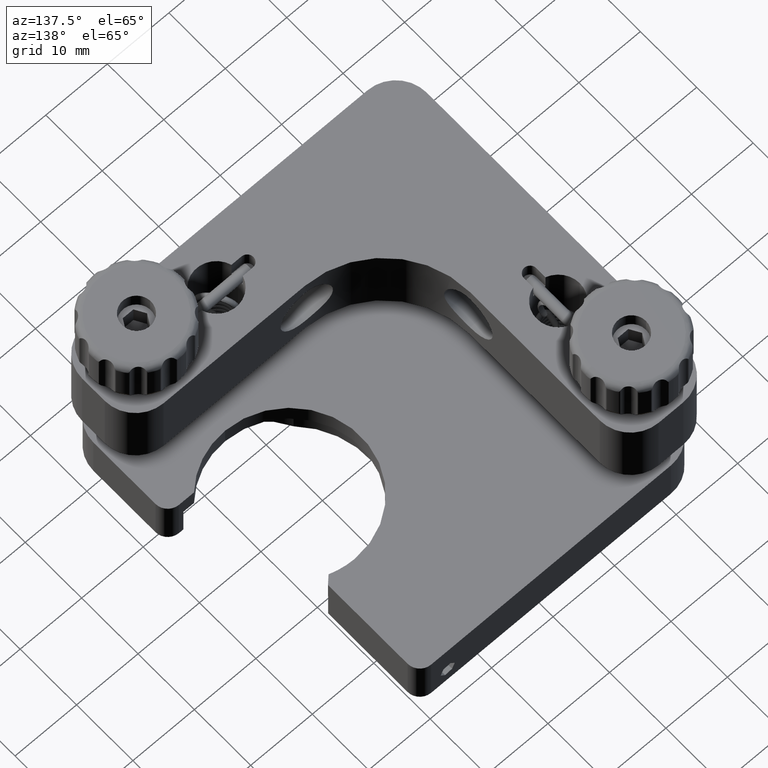
[diagram: clean part render]
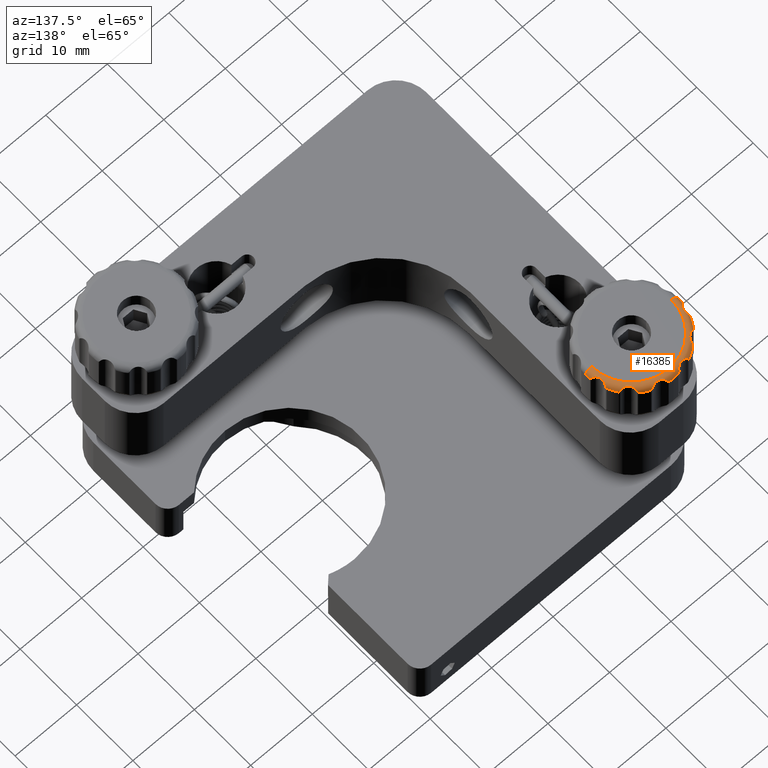
[diagram: same view with one face highlighted and labeled with its STEP entity id]
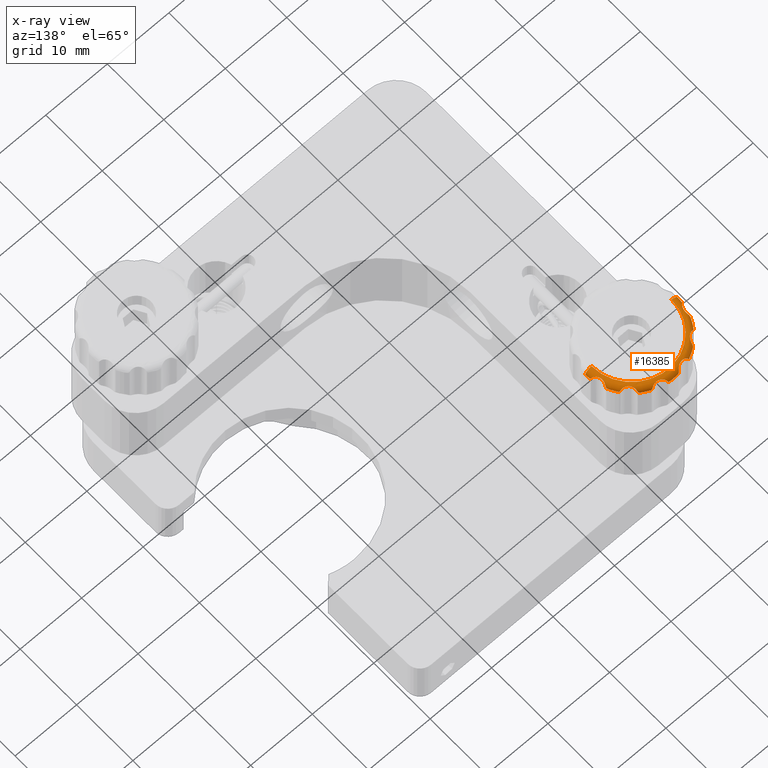
[diagram: x-ray of the same camera — body ghosted, the highlighted face saturated]
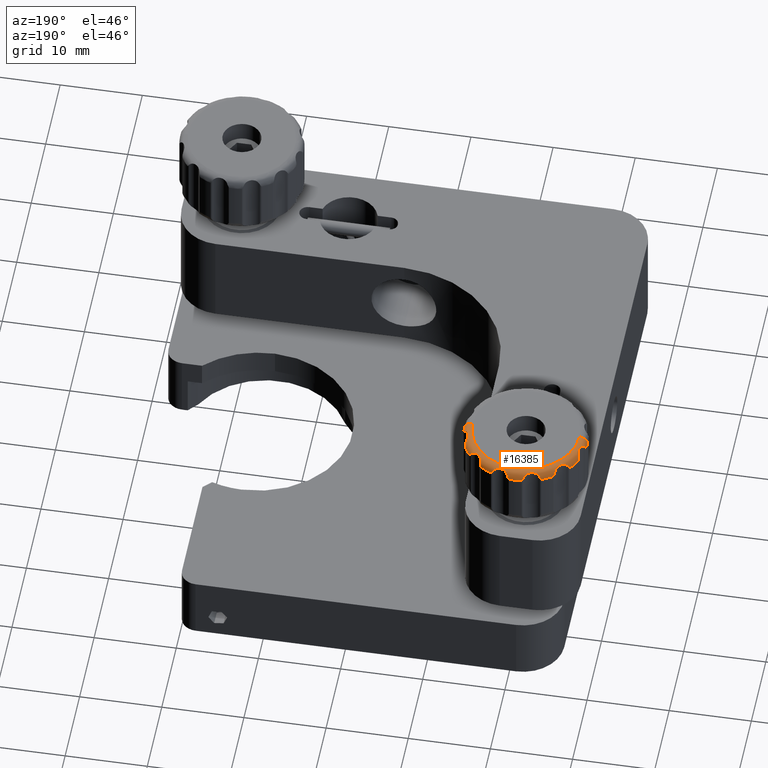
[diagram: same view with one face highlighted and labeled with its STEP entity id]
A machine part, auxiliary view. The second image highlights one B-rep face of the part: STEP entity #16385.
The next image is the same camera in x-ray: the body ghosted, the highlighted face saturated — about 0% of this face is hidden behind the body in this view.
A second angle (auxiliary view) of the same face is appended — the face is thin or edge-on in the first view.
In plain terms, the highlighted toroidal blend (fillet) surface has major radius 6.5 mm and minor (blend) radius 1 mm.
Its self-contained STEP definition (entity closure, byte-faithful):
#208 = CARTESIAN_POINT ( 'NONE',  ( -14.12902768607808400, 23.94318243566361900, 15.72309571033224000 ) ) ;
#241 = CARTESIAN_POINT ( 'NONE',  ( -17.93418496283734200, 27.84476282700201800, 15.49999999999999300 ) ) ;
#280 = CARTESIAN_POINT ( 'NONE',  ( -27.50000000000006000, 21.00000000000000400, 15.49999999999999300 ) ) ;
#426 = EDGE_CURVE ( 'NONE', #3999, #12982, #16320, .T. ) ;
#482 = DIRECTION ( 'NONE',  ( -2.775557561562875300E-017, -1.000000000000000000, 0.0000000000000000000 ) ) ;
#483 = ORIENTED_EDGE ( 'NONE', *, *, #7284, .T. ) ;
#529 = CARTESIAN_POINT ( 'NONE',  ( -23.55653957917745000, 27.75125506809396800, 16.19924906942111400 ) ) ;
#549 = ORIENTED_EDGE ( 'NONE', *, *, #9785, .F. ) ;
#635 = CARTESIAN_POINT ( 'NONE',  ( -27.90012042463511900, 22.44692515808713300, 16.34288970420892900 ) ) ;
#701 = B_SPLINE_CURVE_WITH_KNOTS ( 'NONE', 3,
 ( #3421, #12751, #3213, #8157 ),
 .UNSPECIFIED., .F., .F.,
 ( 4, 4 ),
 ( -6.324575239414282200E-006, 0.0004951179910539949400 ),
 .UNSPECIFIED. ) ;
#735 = CARTESIAN_POINT ( 'NONE',  ( -27.87097231392184300, 23.94318243566367200, 15.72309571033262500 ) ) ;
#881 = EDGE_CURVE ( 'NONE', #14117, #14080, #15297, .T. ) ;
#940 = B_SPLINE_CURVE_WITH_KNOTS ( 'NONE', 3,
 ( #241, #3461, #3540, #8409 ),
 .UNSPECIFIED., .F., .F.,
 ( 4, 4 ),
 ( -6.324575239410814400E-006, 0.0004951179910539912600 ),
 .UNSPECIFIED. ) ;
#976 = B_SPLINE_CURVE_WITH_KNOTS ( 'NONE', 3,
 ( #19451, #11655, #14655, #14798, #8394, #8255, #5113, #11444, #2054, #16259, #9917, #17988, #16189, #8459 ),
 .UNSPECIFIED., .F., .F.,
 ( 4, 2, 2, 2, 2, 2, 4 ),
 ( 0.0004549188434784936600, 0.0007454011220209303900, 0.001035883400563367200, 0.001616847957648249100, 0.002197812514733131500, 0.002488294793275570500, 0.002778777071818009500 ),
 .UNSPECIFIED. ) ;
#989 = EDGE_CURVE ( 'NONE', #4250, #16928, #8764, .T. ) ;
#1027 = EDGE_CURVE ( 'NONE', #13282, #18888, #8091, .T. ) ;
#1084 = B_SPLINE_CURVE_WITH_KNOTS ( 'NONE', 3,
 ( #7530, #1251, #20407, #20279 ),
 .UNSPECIFIED., .F., .F.,
 ( 4, 4 ),
 ( 6.478234182319047700E-016, 0.0002437774083436292600 ),
 .UNSPECIFIED. ) ;
#1107 = EDGE_CURVE ( 'NONE', #5791, #16841, #19043, .T. ) ;
#1251 = CARTESIAN_POINT ( 'NONE',  ( -14.13718922822888600, 23.86035258607626700, 15.86278871808136500 ) ) ;
#1371 = CARTESIAN_POINT ( 'NONE',  ( -20.15204043895612400, 28.45235117989172100, 15.64503689019439600 ) ) ;
#1751 = DIRECTION ( 'NONE',  ( -1.000000000000000000, 0.0000000000000000000, 0.0000000000000000000 ) ) ;
#1786 = CARTESIAN_POINT ( 'NONE',  ( -27.84420518217771300, 23.81931234362546900, 15.93144481517797800 ) ) ;
#1846 = CARTESIAN_POINT ( 'NONE',  ( -19.98847500220491100, 28.29360603114619700, 16.01260653686831500 ) ) ;
#1904 = EDGE_CURVE ( 'NONE', #11379, #19382, #5316, .T. ) ;
#1911 = CARTESIAN_POINT ( 'NONE',  ( -13.54769813220361900, 21.84843902981935300, 15.64589912283661400 ) ) ;
#1913 = CARTESIAN_POINT ( 'NONE',  ( -20.01949351969446400, 28.33691172829280800, 15.93144481517599200 ) ) ;
#2001 = CARTESIAN_POINT ( 'NONE',  ( -15.13630129812849600, 25.51759938466640100, 15.93144481517797800 ) ) ;
#2054 = CARTESIAN_POINT ( 'NONE',  ( -15.74623353027861400, 25.70234901434724900, 16.34243520622109700 ) ) ;
#2065 = DIRECTION ( 'NONE',  ( 0.0000000000000000000, 0.0000000000000000000, 1.000000000000000000 ) ) ;
#2140 = CARTESIAN_POINT ( 'NONE',  ( -26.86369870187272500, 25.51759938466636900, 15.93144481517599200 ) ) ;
#2145 = CARTESIAN_POINT ( 'NONE',  ( -22.44547046902465600, 27.90106973550327000, 16.34243520622109700 ) ) ;
#2180 = CARTESIAN_POINT ( 'NONE',  ( -28.23934592526522300, 22.05397941459168000, 16.08376228823996700 ) ) ;
#2277 = CARTESIAN_POINT ( 'NONE',  ( -26.25221699786230900, 25.70313415659583700, 16.34288970420891500 ) ) ;
#2304 = CARTESIAN_POINT ( 'NONE',  ( -16.60516902751818300, 27.07745511898819400, 15.49999999999999300 ) ) ;
#2360 = CARTESIAN_POINT ( 'NONE',  ( -23.19698626803928600, 27.69914215594947000, 16.34288970420889000 ) ) ;
#2578 = DIRECTION ( 'NONE',  ( -0.0000000000000000000, -0.0000000000000000000, -1.000000000000000000 ) ) ;
#2580 = CARTESIAN_POINT ( 'NONE',  ( -14.03104516766677500, 22.34852197603985900, 16.30343411145580700 ) ) ;
#2669 = CARTESIAN_POINT ( 'NONE',  ( -20.01949351969446400, 28.33691172829280800, 15.93144481517599200 ) ) ;
#2697 = CARTESIAN_POINT ( 'NONE',  ( -14.22042738836560200, 23.66376955005189200, 16.12790564528898300 ) ) ;
#3055 = EDGE_CURVE ( 'NONE', #10876, #5117, #976, .T. ) ;
#3118 = CARTESIAN_POINT ( 'NONE',  ( -14.97033678072969000, 25.46092068728656700, 15.64589912283481300 ) ) ;
#3125 = DIRECTION ( 'NONE',  ( 1.000000000000000000, 0.0000000000000000000, 0.0000000000000000000 ) ) ;
#3213 = CARTESIAN_POINT ( 'NONE',  ( -25.50858815403592700, 26.95539072582206700, 15.79106661492727800 ) ) ;
#3240 = ORIENTED_EDGE ( 'NONE', *, *, #17520, .T. ) ;
#3340 = ORIENTED_EDGE ( 'NONE', *, *, #8318, .T. ) ;
#3357 = DIRECTION ( 'NONE',  ( 1.502202555303640900E-016, 1.000000000000000000, -0.0000000000000000000 ) ) ;
#3421 = CARTESIAN_POINT ( 'NONE',  ( -25.39483097248168900, 27.07745511898824400, 15.49999999999999300 ) ) ;
#3433 = CARTESIAN_POINT ( 'NONE',  ( -21.00000000000002100, 21.00000000000000400, 15.49999999999999300 ) ) ;
#3453 = CARTESIAN_POINT ( 'NONE',  ( -18.44287025253894200, 27.75140410055879400, 16.19889000328760500 ) ) ;
#3461 = CARTESIAN_POINT ( 'NONE',  ( -18.00861881948907600, 27.87810224909222600, 15.64589912283571100 ) ) ;
#3540 = CARTESIAN_POINT ( 'NONE',  ( -18.09677441899391300, 27.88224723950779100, 15.79106661492727600 ) ) ;
#3620 = CARTESIAN_POINT ( 'NONE',  ( -28.46064600964443500, 21.76730770801389500, 15.49999999999999300 ) ) ;
#3669 = CARTESIAN_POINT ( 'NONE',  ( -28.33691172829275500, 21.98050648030558900, 15.93144481517599200 ) ) ;
#3742 = CARTESIAN_POINT ( 'NONE',  ( -26.95539768941092600, 25.50858746967439200, 15.79105595384368700 ) ) ;
#3747 = CARTESIAN_POINT ( 'NONE',  ( -27.86179662189385600, 24.02778525236955800, 15.57454285579638400 ) ) ;
#3782 = B_SPLINE_CURVE_WITH_KNOTS ( 'NONE', 3,
 ( #5495, #11893, #16840, #19895 ),
 .UNSPECIFIED., .F., .F.,
 ( 4, 4 ),
 ( -6.324575239424950500E-006, 0.0004951179910539897400 ),
 .UNSPECIFIED. ) ;
#3788 = CARTESIAN_POINT ( 'NONE',  ( -28.06565063069612600, 22.22627152745555900, 16.24350046152419600 ) ) ;
#3851 = CARTESIAN_POINT ( 'NONE',  ( -27.75140410055874800, 23.55712974746116800, 16.19889000328764100 ) ) ;
#3870 = CARTESIAN_POINT ( 'NONE',  ( -25.51759938466628700, 26.86369870187156300, 15.93144481517797800 ) ) ;
#3914 = EDGE_CURVE ( 'NONE', #7302, #12982, #6689, .T. ) ;
#3944 = CARTESIAN_POINT ( 'NONE',  ( -23.77079667091947400, 27.82221060706559300, 16.01260653686831500 ) ) ;
#3950 = CARTESIAN_POINT ( 'NONE',  ( -13.66308827170828100, 21.98050648030626400, 15.93144481517797800 ) ) ;
#3999 = VERTEX_POINT ( 'NONE', #5345 ) ;
#4029 = CARTESIAN_POINT ( 'NONE',  ( -13.95428781578155900, 22.24796272900804400, 16.26132053434064100 ) ) ;
#4049 = DIRECTION ( 'NONE',  ( 1.000000000000000000, 0.0000000000000000000, 0.0000000000000000000 ) ) ;
#4187 = CARTESIAN_POINT ( 'NONE',  ( -27.86281077177126200, 23.86035258607684600, 15.86278871808288000 ) ) ;
#4250 = VERTEX_POINT ( 'NONE', #11406 ) ;
#4342 = EDGE_CURVE ( 'NONE', #10876, #15144, #9760, .T. ) ;
#4343 = CARTESIAN_POINT ( 'NONE',  ( -14.18483468242135500, 23.75525615890144900, 16.03860421227900800 ) ) ;
#4383 = CARTESIAN_POINT ( 'NONE',  ( -21.00000000000002100, 21.00000000000000400, 15.49999999999999300 ) ) ;
#4443 = DIRECTION ( 'NONE',  ( -0.0000000000000000000, -0.0000000000000000000, -1.000000000000000000 ) ) ;
#4477 = EDGE_CURVE ( 'NONE', #14080, #20206, #10030, .T. ) ;
#4521 = B_SPLINE_CURVE_WITH_KNOTS ( 'NONE', 3,
 ( #16405, #5548, #11876, #8546, #11811, #2277, #10353, #14956, #11744, #18133, #13399, #13268, #16613, #3870 ),
 .UNSPECIFIED., .F., .F.,
 ( 4, 2, 2, 2, 2, 2, 4 ),
 ( 0.0004549188434784931200, 0.0007454011220209251800, 0.001035883400563357300, 0.001616847957648220100, 0.002197812514733082900, 0.002488294793275515900, 0.002778777071817949200 ),
 .UNSPECIFIED. ) ;
#4596 = EDGE_CURVE ( 'NONE', #19985, #11046, #20613, .T. ) ;
#4714 = DIRECTION ( 'NONE',  ( -0.0000000000000000000, -0.0000000000000000000, -1.000000000000000000 ) ) ;
#4810 = CARTESIAN_POINT ( 'NONE',  ( -21.98050648030615800, 28.33691172829176700, 15.93144481517797800 ) ) ;
#4828 = CARTESIAN_POINT ( 'NONE',  ( -18.18068765637463400, 27.84420518217779200, 15.93144481517797800 ) ) ;
#4882 = DIRECTION ( 'NONE',  ( -0.0000000000000000000, -0.0000000000000000000, -1.000000000000000000 ) ) ;
#4944 = VERTEX_POINT ( 'NONE', #8122 ) ;
#4985 = CARTESIAN_POINT ( 'NONE',  ( -21.76730770801368600, 28.46064600964448500, 15.49999999999999300 ) ) ;
#5113 = CARTESIAN_POINT ( 'NONE',  ( -16.18677104235349500, 26.08608794126448800, 16.36611366251175400 ) ) ;
#5117 = VERTEX_POINT ( 'NONE', #2001 ) ;
#5266 = EDGE_CURVE ( 'NONE', #5779, #5494, #4521, .T. ) ;
#5316 = B_SPLINE_CURVE_WITH_KNOTS ( 'NONE', 3,
 ( #8763, #18358, #7303, #16903, #18504, #2580, #4029, #8839, #20030, #3950 ),
 .UNSPECIFIED., .F., .F.,
 ( 4, 2, 2, 2, 4 ),
 ( 0.001221977629040591900, 0.001611177489734941100, 0.002000377350429290400, 0.002389577211123639800, 0.002778777071817988700 ),
 .UNSPECIFIED. ) ;
#5322 = CARTESIAN_POINT ( 'NONE',  ( -14.12902768607579600, 23.98599716621538700, 15.64943535940760800 ) ) ;
#5345 = CARTESIAN_POINT ( 'NONE',  ( -28.50000000000006400, 21.00000000000000400, 15.49999999999999300 ) ) ;
#5351 = CARTESIAN_POINT ( 'NONE',  ( -22.05370183043870500, 28.23968065497144800, 16.08335425152816700 ) ) ;
#5363 = CARTESIAN_POINT ( 'NONE',  ( -16.53946988880867900, 27.02994565918752900, 15.64503689019469100 ) ) ;
#5494 = VERTEX_POINT ( 'NONE', #20016 ) ;
#5495 = CARTESIAN_POINT ( 'NONE',  ( -21.76730770801368600, 28.46064600964448500, 15.49999999999999300 ) ) ;
#5525 = CARTESIAN_POINT ( 'NONE',  ( -27.50000000000002100, 21.00000000000000400, 16.49999999999999300 ) ) ;
#5548 = CARTESIAN_POINT ( 'NONE',  ( -26.81068560927041500, 25.52280936022670900, 16.01260653686832600 ) ) ;
#5690 = CARTESIAN_POINT ( 'NONE',  ( -21.00000000000002100, 21.00000000000000400, 15.49999999999999300 ) ) ;
#5769 = ORIENTED_EDGE ( 'NONE', *, *, #11527, .T. ) ;
#5779 = VERTEX_POINT ( 'NONE', #7120 ) ;
#5791 = VERTEX_POINT ( 'NONE', #16735 ) ;
#6047 = CARTESIAN_POINT ( 'NONE',  ( -20.23269229198617200, 28.46064600964447100, 15.49999999999999300 ) ) ;
#6112 = AXIS2_PLACEMENT_3D ( 'NONE', #4383, #10609, #10870 ) ;
#6114 = AXIS2_PLACEMENT_3D ( 'NONE', #20028, #7372, #18501 ) ;
#6194 = AXIS2_PLACEMENT_3D ( 'NONE', #7325, #10602, #4049 ) ;
#6440 = CARTESIAN_POINT ( 'NONE',  ( -19.83840068730116700, 28.12502818598654700, 16.19924906942111400 ) ) ;
#6451 = CARTESIAN_POINT ( 'NONE',  ( -14.92254488101181500, 25.39483097248177000, 15.49999999999999300 ) ) ;
#6507 = ORIENTED_EDGE ( 'NONE', *, *, #19790, .F. ) ;
#6534 = CARTESIAN_POINT ( 'NONE',  ( -13.66308827170828100, 21.98050648030626400, 15.93144481517797800 ) ) ;
#6640 = CARTESIAN_POINT ( 'NONE',  ( -18.99998178672387200, 27.71116098822776400, 16.36593669960154400 ) ) ;
#6689 = B_SPLINE_CURVE_WITH_KNOTS ( 'NONE', 3,
 ( #3669, #19392, #17854, #9867 ),
 .UNSPECIFIED., .F., .F.,
 ( 4, 4 ),
 ( 6.659621273059926700E-016, 0.0004984791478706762300 ),
 .UNSPECIFIED. ) ;
#6712 = CARTESIAN_POINT ( 'NONE',  ( -18.80127927884401400, 27.69923693874612500, 16.34243520622110400 ) ) ;
#6743 = EDGE_CURVE ( 'NONE', #4250, #16841, #17415, .T. ) ;
#6976 = CIRCLE ( 'NONE', #6194, 6.500000000000037300 ) ;
#6981 = EDGE_CURVE ( 'NONE', #7477, #15144, #19200, .T. ) ;
#7003 = VERTEX_POINT ( 'NONE', #8403 ) ;
#7120 = CARTESIAN_POINT ( 'NONE',  ( -26.86369870187272500, 25.51759938466636900, 15.93144481517599200 ) ) ;
#7191 = CARTESIAN_POINT ( 'NONE',  ( -27.82205096019736200, 23.77044452157550200, 16.01319564643754800 ) ) ;
#7284 = EDGE_CURVE ( 'NONE', #3999, #17056, #19442, .T. ) ;
#7302 = VERTEX_POINT ( 'NONE', #11298 ) ;
#7303 = CARTESIAN_POINT ( 'NONE',  ( -14.27294962120295800, 22.94183047668230900, 16.36573487087486400 ) ) ;
#7325 = CARTESIAN_POINT ( 'NONE',  ( -21.00000000000002100, 21.00000000000000400, 16.49999999999999300 ) ) ;
#7372 = DIRECTION ( 'NONE',  ( -0.0000000000000000000, -0.0000000000000000000, -1.000000000000000000 ) ) ;
#7398 = CARTESIAN_POINT ( 'NONE',  ( -27.84476282700191900, 24.06581503716276100, 15.49999999999999300 ) ) ;
#7464 = DIRECTION ( 'NONE',  ( -0.0000000000000000000, -0.0000000000000000000, -1.000000000000000000 ) ) ;
#7477 = VERTEX_POINT ( 'NONE', #19712 ) ;
#7530 = CARTESIAN_POINT ( 'NONE',  ( -14.15579481782166700, 23.81931234362656000, 15.93144481517599200 ) ) ;
#7540 = CIRCLE ( 'NONE', #19339, 7.500000000000043500 ) ;
#7578 = AXIS2_PLACEMENT_3D ( 'NONE', #5690, #2578, #10512 ) ;
#7968 = ORIENTED_EDGE ( 'NONE', *, *, #16085, .F. ) ;
#8091 = CIRCLE ( 'NONE', #7578, 7.500000000000043500 ) ;
#8097 = CARTESIAN_POINT ( 'NONE',  ( -14.13830281326879800, 24.02800725209782600, 15.57410771019398200 ) ) ;
#8122 = CARTESIAN_POINT ( 'NONE',  ( -14.12902768607808400, 23.94318243566361900, 15.72309571033224000 ) ) ;
#8157 = CARTESIAN_POINT ( 'NONE',  ( -25.51759938466628700, 26.86369870187156300, 15.93144481517797800 ) ) ;
#8159 = VERTEX_POINT ( 'NONE', #17648 ) ;
#8165 = CARTESIAN_POINT ( 'NONE',  ( -28.12502818598653700, 22.16159931269890000, 16.19924906942113900 ) ) ;
#8185 = ORIENTED_EDGE ( 'NONE', *, *, #6743, .T. ) ;
#8189 = EDGE_CURVE ( 'NONE', #13282, #5117, #16025, .T. ) ;
#8255 = CARTESIAN_POINT ( 'NONE',  ( -16.29686584340422000, 26.25221699786236600, 16.34288970420889000 ) ) ;
#8318 = EDGE_CURVE ( 'NONE', #7477, #11850, #940, .T. ) ;
#8394 = CARTESIAN_POINT ( 'NONE',  ( -16.40519238993793700, 26.50589717672066900, 16.24350046152416000 ) ) ;
#8403 = CARTESIAN_POINT ( 'NONE',  ( -13.53935399035554900, 21.76730770801378900, 15.49999999999999300 ) ) ;
#8409 = CARTESIAN_POINT ( 'NONE',  ( -18.18068765637463400, 27.84420518217779200, 15.93144481517797800 ) ) ;
#8416 = VERTEX_POINT ( 'NONE', #4985 ) ;
#8459 = CARTESIAN_POINT ( 'NONE',  ( -15.13630129812849600, 25.51759938466640100, 15.93144481517797800 ) ) ;
#8487 = CARTESIAN_POINT ( 'NONE',  ( -23.70690001453034800, 27.79644718535889700, 16.08376228823993900 ) ) ;
#8546 = CARTESIAN_POINT ( 'NONE',  ( -26.58965575539503600, 25.56848860680908000, 16.19924906942112800 ) ) ;
#8556 = CARTESIAN_POINT ( 'NONE',  ( -22.22587990958236000, 28.06601594365543300, 16.24322292642799000 ) ) ;
#8578 = CARTESIAN_POINT ( 'NONE',  ( -14.49999999999998600, 21.00000000000000400, 15.49999999999999300 ) ) ;
#8633 = CARTESIAN_POINT ( 'NONE',  ( -18.18068765637463400, 27.84420518217779200, 15.93144481517797800 ) ) ;
#8748 = CARTESIAN_POINT ( 'NONE',  ( -23.90323195383180300, 27.88225012862776400, 15.79105595384368700 ) ) ;
#8763 = CARTESIAN_POINT ( 'NONE',  ( -14.28963047654284000, 23.19996188337145400, 16.32727923209243700 ) ) ;
#8764 = B_SPLINE_CURVE_WITH_KNOTS ( 'NONE', 3,
 ( #18079, #3944, #8487, #529, #18141, #2360, #19677, #14820, #2145, #8556, #15044, #5351, #16490, #19747 ),
 .UNSPECIFIED., .F., .F.,
 ( 4, 2, 2, 2, 2, 2, 4 ),
 ( 0.0004549188434784901300, 0.0007454011220209286500, 0.001035883400563367000, 0.001616847957648230900, 0.002197812514733094600, 0.002488294793275525400, 0.002778777071817956600 ),
 .UNSPECIFIED. ) ;
#8802 = CARTESIAN_POINT ( 'NONE',  ( -14.15523717299800300, 24.06581503716264700, 15.49999999999999300 ) ) ;
#8839 = CARTESIAN_POINT ( 'NONE',  ( -13.79877945612570200, 22.08445865847332400, 16.13015140565837800 ) ) ;
#8986 = CARTESIAN_POINT ( 'NONE',  ( -14.92254488101181500, 25.39483097248177000, 15.49999999999999300 ) ) ;
#9027 = ORIENTED_EDGE ( 'NONE', *, *, #8189, .T. ) ;
#9055 = FACE_OUTER_BOUND ( 'NONE', #10068, .T. ) ;
#9070 = CARTESIAN_POINT ( 'NONE',  ( -21.00000000000002100, 21.00000000000000400, 15.49999999999999300 ) ) ;
#9201 = CARTESIAN_POINT ( 'NONE',  ( -21.00000000000002100, 21.00000000000000400, 15.49999999999999300 ) ) ;
#9225 = CARTESIAN_POINT ( 'NONE',  ( -14.15579481782166700, 23.81931234362656000, 15.93144481517599200 ) ) ;
#9627 = DIRECTION ( 'NONE',  ( 1.000000000000000000, 0.0000000000000000000, 0.0000000000000000000 ) ) ;
#9662 = ORIENTED_EDGE ( 'NONE', *, *, #1904, .F. ) ;
#9696 = CARTESIAN_POINT ( 'NONE',  ( -28.33691172829275500, 21.98050648030558900, 15.93144481517599200 ) ) ;
#9760 = B_SPLINE_CURVE_WITH_KNOTS ( 'NONE', 3,
 ( #13150, #13352, #5363, #2304 ),
 .UNSPECIFIED., .F., .F.,
 ( 4, 4 ),
 ( 6.477374764399226100E-016, 0.0004984791478706516200 ),
 .UNSPECIFIED. ) ;
#9762 = CARTESIAN_POINT ( 'NONE',  ( -27.81129584183995000, 22.62533458092060100, 16.36611366251179000 ) ) ;
#9785 = EDGE_CURVE ( 'NONE', #7003, #10783, #12671, .T. ) ;
#9844 = EDGE_CURVE ( 'NONE', #14117, #8159, #15691, .T. ) ;
#9867 = CARTESIAN_POINT ( 'NONE',  ( -28.46064600964443500, 21.76730770801389500, 15.49999999999999300 ) ) ;
#9917 = CARTESIAN_POINT ( 'NONE',  ( -15.40975862764645400, 25.56832258856783500, 16.19889000328760500 ) ) ;
#10030 = B_SPLINE_CURVE_WITH_KNOTS ( 'NONE', 3,
 ( #10452, #13716, #4187, #15203 ),
 .UNSPECIFIED., .F., .F.,
 ( 4, 4 ),
 ( 0.0002498727217915427600, 0.0004951179910539694600 ),
 .UNSPECIFIED. ) ;
#10068 = EDGE_LOOP ( 'NONE', ( #20648, #483, #18935, #17271, #549, #5769, #9662, #6507, #14899, #3240, #17457, #9027, #13690, #11171, #13420, #3340, #17769, #18714, #7968, #19129, #17637, #8185, #13608, #19823, #19193, #16397, #19523, #18583, #16180, #11502, #17670 ) ) ;
#10195 = CARTESIAN_POINT ( 'NONE',  ( -28.29360603114620100, 22.01152499779516700, 16.01260653686833300 ) ) ;
#10350 = CARTESIAN_POINT ( 'NONE',  ( -23.99182106869879800, 27.87790522023157900, 15.64503689019373800 ) ) ;
#10353 = CARTESIAN_POINT ( 'NONE',  ( -26.08608794126442000, 25.81322895764656500, 16.36611366251178300 ) ) ;
#10364 = CARTESIAN_POINT ( 'NONE',  ( -27.87097231392413500, 23.98599080299559800, 15.64944630697220900 ) ) ;
#10412 = CARTESIAN_POINT ( 'NONE',  ( -13.66308827170828100, 21.98050648030626400, 15.93144481517797800 ) ) ;
#10452 = CARTESIAN_POINT ( 'NONE',  ( -27.87097231392184300, 23.94318243566367200, 15.72309571033262500 ) ) ;
#10512 = DIRECTION ( 'NONE',  ( 1.000000000000000000, 2.127927463864871000E-014, 0.0000000000000000000 ) ) ;
#10602 = DIRECTION ( 'NONE',  ( 0.0000000000000000000, 0.0000000000000000000, 1.000000000000000000 ) ) ;
#10609 = DIRECTION ( 'NONE',  ( -0.0000000000000000000, -0.0000000000000000000, -1.000000000000000000 ) ) ;
#10744 = DIRECTION ( 'NONE',  ( 1.000000000000000000, 0.0000000000000000000, 0.0000000000000000000 ) ) ;
#10783 = VERTEX_POINT ( 'NONE', #13500 ) ;
#10870 = DIRECTION ( 'NONE',  ( 1.000000000000000000, 4.625929269271458500E-015, 0.0000000000000000000 ) ) ;
#10876 = VERTEX_POINT ( 'NONE', #14828 ) ;
#10888 = AXIS2_PLACEMENT_3D ( 'NONE', #280, #3357, #1751 ) ;
#11046 = VERTEX_POINT ( 'NONE', #20309 ) ;
#11171 = ORIENTED_EDGE ( 'NONE', *, *, #4342, .T. ) ;
#11298 = CARTESIAN_POINT ( 'NONE',  ( -28.33691172829275500, 21.98050648030558900, 15.93144481517599200 ) ) ;
#11379 = VERTEX_POINT ( 'NONE', #16326 ) ;
#11406 = CARTESIAN_POINT ( 'NONE',  ( -23.81931234362645400, 27.84420518217839600, 15.93144481517599200 ) ) ;
#11444 = CARTESIAN_POINT ( 'NONE',  ( -15.91235292515742100, 25.81202679805425100, 16.36593669960154100 ) ) ;
#11502 = ORIENTED_EDGE ( 'NONE', *, *, #17567, .F. ) ;
#11527 = EDGE_CURVE ( 'NONE', #7003, #19382, #14629, .T. ) ;
#11655 = CARTESIAN_POINT ( 'NONE',  ( -16.47719063977335800, 26.81068560927044700, 16.01260653686830800 ) ) ;
#11744 = CARTESIAN_POINT ( 'NONE',  ( -25.70234901434716000, 26.25376646972145900, 16.34243520622112200 ) ) ;
#11791 = CARTESIAN_POINT ( 'NONE',  ( -27.69923693874607200, 23.19872072115610000, 16.34243520622114000 ) ) ;
#11811 = CARTESIAN_POINT ( 'NONE',  ( -26.50589717672060500, 25.59480761006213400, 16.24350046152419200 ) ) ;
#11850 = VERTEX_POINT ( 'NONE', #8633 ) ;
#11876 = CARTESIAN_POINT ( 'NONE',  ( -26.74246777076719200, 25.53244591073487200, 16.08376228823996700 ) ) ;
#11893 = CARTESIAN_POINT ( 'NONE',  ( -21.84843902982183300, 28.45230186779615200, 15.64589912283515700 ) ) ;
#12226 = CARTESIAN_POINT ( 'NONE',  ( -14.28963047654283800, 23.32528591086039400, 16.30076633051196200 ) ) ;
#12394 = CARTESIAN_POINT ( 'NONE',  ( -21.00000000000002100, 21.00000000000000400, 15.49999999999999300 ) ) ;
#12671 = CIRCLE ( 'NONE', #6112, 7.500000000000043500 ) ;
#12751 = CARTESIAN_POINT ( 'NONE',  ( -25.46092068728622600, 27.02966321927055300, 15.64589912283499000 ) ) ;
#12982 = VERTEX_POINT ( 'NONE', #3620 ) ;
#12983 = CARTESIAN_POINT ( 'NONE',  ( -13.53935399035554900, 21.76730770801378900, 15.49999999999999300 ) ) ;
#12987 = CARTESIAN_POINT ( 'NONE',  ( -19.37466541907948100, 27.81129584183999300, 16.36611366251176100 ) ) ;
#13052 = CARTESIAN_POINT ( 'NONE',  ( -13.58818626495791400, 21.92685651368576700, 15.79106661492727600 ) ) ;
#13101 = CARTESIAN_POINT ( 'NONE',  ( -14.15579481782166700, 23.81931234362656000, 15.93144481517599200 ) ) ;
#13113 = EDGE_CURVE ( 'NONE', #8416, #16928, #3782, .T. ) ;
#13150 = CARTESIAN_POINT ( 'NONE',  ( -16.48240061533373400, 26.86369870187280300, 15.93144481517599200 ) ) ;
#13268 = CARTESIAN_POINT ( 'NONE',  ( -25.53237288065977900, 26.74289644727269500, 16.08335425152819900 ) ) ;
#13282 = VERTEX_POINT ( 'NONE', #8986 ) ;
#13330 = CARTESIAN_POINT ( 'NONE',  ( -27.02994565918496400, 25.46053011119476400, 15.64503689019233000 ) ) ;
#13352 = CARTESIAN_POINT ( 'NONE',  ( -16.49141253032562900, 26.95539768941100800, 15.79105595384369000 ) ) ;
#13377 = CARTESIAN_POINT ( 'NONE',  ( -27.73228926554260100, 23.47136482814044100, 16.24322292642804300 ) ) ;
#13399 = CARTESIAN_POINT ( 'NONE',  ( -25.56832258856773200, 26.59024137235364200, 16.19889000328762000 ) ) ;
#13420 = ORIENTED_EDGE ( 'NONE', *, *, #6981, .F. ) ;
#13500 = CARTESIAN_POINT ( 'NONE',  ( -13.49999999999998000, 21.00000000000000400, 15.49999999999999300 ) ) ;
#13563 = EDGE_CURVE ( 'NONE', #19985, #11850, #14246, .T. ) ;
#13608 = ORIENTED_EDGE ( 'NONE', *, *, #1107, .F. ) ;
#13690 = ORIENTED_EDGE ( 'NONE', *, *, #3055, .F. ) ;
#13716 = CARTESIAN_POINT ( 'NONE',  ( -27.87097231392047500, 23.90220405808143100, 15.79359671860756200 ) ) ;
#13778 = EDGE_CURVE ( 'NONE', #5791, #5494, #701, .T. ) ;
#13820 = CARTESIAN_POINT ( 'NONE',  ( -14.28963047654284000, 23.19996188337145400, 16.32727923209243700 ) ) ;
#13833 = EDGE_CURVE ( 'NONE', #10783, #13971, #15594, .T. ) ;
#13971 = VERTEX_POINT ( 'NONE', #18309 ) ;
#14080 = VERTEX_POINT ( 'NONE', #15131 ) ;
#14117 = VERTEX_POINT ( 'NONE', #7398 ) ;
#14246 = B_SPLINE_CURVE_WITH_KNOTS ( 'NONE', 3,
 ( #1913, #1846, #14534, #6440, #17569, #16264, #12987, #6640, #6712, #14388, #3453, #19249, #17718, #4828 ),
 .UNSPECIFIED., .F., .F.,
 ( 4, 2, 2, 2, 2, 2, 4 ),
 ( 0.0004549188434784983700, 0.0007454011220209353800, 0.001035883400563372200, 0.001616847957648253900, 0.002197812514733135400, 0.002488294793275570100, 0.002778777071818005200 ),
 .UNSPECIFIED. ) ;
#14382 = CARTESIAN_POINT ( 'NONE',  ( -16.60516902751818300, 27.07745511898819400, 15.49999999999999300 ) ) ;
#14388 = CARTESIAN_POINT ( 'NONE',  ( -18.52863517185966900, 27.73228926554267200, 16.24322292642799700 ) ) ;
#14534 = CARTESIAN_POINT ( 'NONE',  ( -19.94602058540838700, 28.23934592526523300, 16.08376228823993900 ) ) ;
#14629 = B_SPLINE_CURVE_WITH_KNOTS ( 'NONE', 3,
 ( #12983, #1911, #13052, #10412 ),
 .UNSPECIFIED., .F., .F.,
 ( 4, 4 ),
 ( -6.324575239425548600E-006, 0.0004951179910539966800 ),
 .UNSPECIFIED. ) ;
#14655 = CARTESIAN_POINT ( 'NONE',  ( -16.46755408926520300, 26.74246777076724200, 16.08376228823993200 ) ) ;
#14751 = B_SPLINE_CURVE_WITH_KNOTS ( 'NONE', 3,
 ( #9696, #10195, #2180, #8165, #3788, #635, #9762, #16528, #11791, #13377, #3851, #15366, #7191, #15305 ),
 .UNSPECIFIED., .F., .F.,
 ( 4, 2, 2, 2, 2, 2, 4 ),
 ( 0.0004549188434784819500, 0.0007454011220209110900, 0.001035883400563340300, 0.001616847957648196200, 0.002197812514733052100, 0.002488294793275482900, 0.002778777071817914100 ),
 .UNSPECIFIED. ) ;
#14798 = CARTESIAN_POINT ( 'NONE',  ( -16.43151139319099500, 26.58965575539508200, 16.19924906942110400 ) ) ;
#14820 = CARTESIAN_POINT ( 'NONE',  ( -22.62351391338509300, 27.81204501133043300, 16.36593669960154100 ) ) ;
#14828 = CARTESIAN_POINT ( 'NONE',  ( -16.48240061533373400, 26.86369870187280300, 15.93144481517599200 ) ) ;
#14899 = ORIENTED_EDGE ( 'NONE', *, *, #19128, .T. ) ;
#14955 = CARTESIAN_POINT ( 'NONE',  ( -23.81931234362645400, 27.84420518217839600, 15.93144481517599200 ) ) ;
#14956 = CARTESIAN_POINT ( 'NONE',  ( -25.81202679805417300, 26.08764707484264300, 16.36593669960156900 ) ) ;
#15044 = CARTESIAN_POINT ( 'NONE',  ( -22.16116272820516300, 28.12545233602891100, 16.19889000328759800 ) ) ;
#15102 = CARTESIAN_POINT ( 'NONE',  ( -27.07745511898811200, 25.39483097248182400, 15.49999999999999300 ) ) ;
#15131 = CARTESIAN_POINT ( 'NONE',  ( -27.87097231392184300, 23.94318243566367200, 15.72309571033262500 ) ) ;
#15144 = VERTEX_POINT ( 'NONE', #14382 ) ;
#15167 = B_SPLINE_CURVE_WITH_KNOTS ( 'NONE', 3,
 ( #2140, #3742, #13330, #15102 ),
 .UNSPECIFIED., .F., .F.,
 ( 4, 4 ),
 ( 6.348424331968791600E-016, 0.0004984791478706746000 ),
 .UNSPECIFIED. ) ;
#15203 = CARTESIAN_POINT ( 'NONE',  ( -27.84420518217771300, 23.81931234362546900, 15.93144481517797800 ) ) ;
#15297 = B_SPLINE_CURVE_WITH_KNOTS ( 'NONE', 3,
 ( #19605, #3747, #10364, #735 ),
 .UNSPECIFIED., .F., .F.,
 ( 4, 4 ),
 ( -6.324575239439420400E-006, 0.0002498727217915427600 ),
 .UNSPECIFIED. ) ;
#15305 = CARTESIAN_POINT ( 'NONE',  ( -27.84420518217771300, 23.81931234362546900, 15.93144481517797800 ) ) ;
#15366 = CARTESIAN_POINT ( 'NONE',  ( -27.79659827771135700, 23.70730777431167600, 16.08335425152822000 ) ) ;
#15472 = CARTESIAN_POINT ( 'NONE',  ( -20.07314756078332300, 28.41181942350628400, 15.79105595384369000 ) ) ;
#15594 = CIRCLE ( 'NONE', #17866, 1.000000000000000900 ) ;
#15652 = B_SPLINE_CURVE_WITH_KNOTS ( 'NONE', 3,
 ( #208, #5322, #8097, #18116 ),
 .UNSPECIFIED., .F., .F.,
 ( 4, 4 ),
 ( 0.0002437774083436292600, 0.0004984791478706511800 ),
 .UNSPECIFIED. ) ;
#15691 = CIRCLE ( 'NONE', #17173, 7.500000000000043500 ) ;
#15873 = CARTESIAN_POINT ( 'NONE',  ( -15.04460927417798800, 25.50858815403603000, 15.79106661492727600 ) ) ;
#16025 = B_SPLINE_CURVE_WITH_KNOTS ( 'NONE', 3,
 ( #6451, #3118, #15873, #17447 ),
 .UNSPECIFIED., .F., .F.,
 ( 4, 4 ),
 ( -6.324575239408046300E-006, 0.0004951179910540032900 ),
 .UNSPECIFIED. ) ;
#16048 = CARTESIAN_POINT ( 'NONE',  ( -24.06581503716255100, 27.84476282700202200, 15.49999999999999300 ) ) ;
#16085 = EDGE_CURVE ( 'NONE', #8416, #11046, #7540, .T. ) ;
#16180 = ORIENTED_EDGE ( 'NONE', *, *, #4477, .T. ) ;
#16189 = CARTESIAN_POINT ( 'NONE',  ( -15.18969918444162700, 25.52284717665529000, 16.01319564643751600 ) ) ;
#16244 = AXIS2_PLACEMENT_3D ( 'NONE', #9070, #4443, #18725 ) ;
#16259 = CARTESIAN_POINT ( 'NONE',  ( -15.49359064403978300, 25.59465111551507400, 16.24322292642800000 ) ) ;
#16264 = CARTESIAN_POINT ( 'NONE',  ( -19.55307484191294900, 27.90012042463514800, 16.34288970420890100 ) ) ;
#16320 = CIRCLE ( 'NONE', #16244, 7.500000000000043500 ) ;
#16326 = CARTESIAN_POINT ( 'NONE',  ( -14.28963047654284000, 23.19996188337145400, 16.32727923209243700 ) ) ;
#16385 = ADVANCED_FACE ( 'NONE', ( #9055 ), #19740, .T. ) ;
#16397 = ORIENTED_EDGE ( 'NONE', *, *, #20522, .T. ) ;
#16405 = CARTESIAN_POINT ( 'NONE',  ( -26.86369870187272500, 25.51759938466636900, 15.93144481517599200 ) ) ;
#16443 = DIRECTION ( 'NONE',  ( 1.000000000000000000, 0.0000000000000000000, 0.0000000000000000000 ) ) ;
#16490 = CARTESIAN_POINT ( 'NONE',  ( -22.01175014463892800, 28.29329169823066100, 16.01319564643751300 ) ) ;
#16528 = CARTESIAN_POINT ( 'NONE',  ( -27.71116098822771400, 23.00001821327623500, 16.36593669960158000 ) ) ;
#16610 = CARTESIAN_POINT ( 'NONE',  ( -24.06581503716255100, 27.84476282700202200, 15.49999999999999300 ) ) ;
#16613 = CARTESIAN_POINT ( 'NONE',  ( -25.52284717665520100, 26.81030081555848100, 16.01319564643754500 ) ) ;
#16723 = AXIS2_PLACEMENT_3D ( 'NONE', #3433, #4882, #9627 ) ;
#16735 = CARTESIAN_POINT ( 'NONE',  ( -25.39483097248168900, 27.07745511898824400, 15.49999999999999300 ) ) ;
#16840 = CARTESIAN_POINT ( 'NONE',  ( -21.92685651368565300, 28.41181373504213100, 15.79106661492727800 ) ) ;
#16841 = VERTEX_POINT ( 'NONE', #16048 ) ;
#16903 = CARTESIAN_POINT ( 'NONE',  ( -14.20650805752593000, 22.69072183335374500, 16.36630560723604700 ) ) ;
#16928 = VERTEX_POINT ( 'NONE', #4810 ) ;
#16956 = CARTESIAN_POINT ( 'NONE',  ( -14.27307725151017700, 23.44832254932340000, 16.25841325005868400 ) ) ;
#17056 = VERTEX_POINT ( 'NONE', #5525 ) ;
#17160 = B_SPLINE_CURVE_WITH_KNOTS ( 'NONE', 3,
 ( #9225, #4343, #2697, #16956, #12226, #13820 ),
 .UNSPECIFIED., .F., .F.,
 ( 4, 2, 4 ),
 ( 0.0004549188434784920300, 0.0008384482362595419800, 0.001221977629040591900 ),
 .UNSPECIFIED. ) ;
#17173 = AXIS2_PLACEMENT_3D ( 'NONE', #9201, #7464, #10744 ) ;
#17271 = ORIENTED_EDGE ( 'NONE', *, *, #13833, .F. ) ;
#17415 = B_SPLINE_CURVE_WITH_KNOTS ( 'NONE', 3,
 ( #14955, #8748, #10350, #16610 ),
 .UNSPECIFIED., .F., .F.,
 ( 4, 4 ),
 ( 6.462118539548486000E-016, 0.0004984791478706669100 ),
 .UNSPECIFIED. ) ;
#17447 = CARTESIAN_POINT ( 'NONE',  ( -15.13630129812849600, 25.51759938466640100, 15.93144481517797800 ) ) ;
#17457 = ORIENTED_EDGE ( 'NONE', *, *, #1027, .F. ) ;
#17520 = EDGE_CURVE ( 'NONE', #4944, #18888, #15652, .T. ) ;
#17567 = EDGE_CURVE ( 'NONE', #7302, #20206, #14751, .T. ) ;
#17569 = CARTESIAN_POINT ( 'NONE',  ( -19.77372847254452300, 28.06565063069614800, 16.24350046152416400 ) ) ;
#17637 = ORIENTED_EDGE ( 'NONE', *, *, #989, .F. ) ;
#17648 = CARTESIAN_POINT ( 'NONE',  ( -27.07745511898811200, 25.39483097248182400, 15.49999999999999300 ) ) ;
#17670 = ORIENTED_EDGE ( 'NONE', *, *, #3914, .T. ) ;
#17718 = CARTESIAN_POINT ( 'NONE',  ( -18.22955547842465100, 27.82205096019740900, 16.01319564643753100 ) ) ;
#17769 = ORIENTED_EDGE ( 'NONE', *, *, #13563, .F. ) ;
#17854 = CARTESIAN_POINT ( 'NONE',  ( -28.45235117989159000, 21.84795956104482100, 15.64503689019390200 ) ) ;
#17866 = AXIS2_PLACEMENT_3D ( 'NONE', #8578, #482, #16443 ) ;
#17988 = CARTESIAN_POINT ( 'NONE',  ( -15.25710355272739700, 25.53237288065986700, 16.08335425152817100 ) ) ;
#18079 = CARTESIAN_POINT ( 'NONE',  ( -23.81931234362645400, 27.84420518217839600, 15.93144481517599200 ) ) ;
#18116 = CARTESIAN_POINT ( 'NONE',  ( -14.15523717299800300, 24.06581503716264700, 15.49999999999999300 ) ) ;
#18133 = CARTESIAN_POINT ( 'NONE',  ( -25.59465111551497400, 26.50640935596028700, 16.24322292642801800 ) ) ;
#18141 = CARTESIAN_POINT ( 'NONE',  ( -23.47084302063400000, 27.73216870417619600, 16.24350046152416400 ) ) ;
#18309 = CARTESIAN_POINT ( 'NONE',  ( -14.49999999999998600, 21.00000000000000400, 16.49999999999999300 ) ) ;
#18358 = CARTESIAN_POINT ( 'NONE',  ( -14.28963047654283800, 23.07278494476274800, 16.35418412594398400 ) ) ;
#18501 = DIRECTION ( 'NONE',  ( 1.000000000000000000, 4.625929269271458500E-015, 0.0000000000000000000 ) ) ;
#18504 = CARTESIAN_POINT ( 'NONE',  ( -14.15629884763058200, 22.56886924785465000, 16.35531379418746300 ) ) ;
#18583 = ORIENTED_EDGE ( 'NONE', *, *, #881, .T. ) ;
#18681 = AXIS2_PLACEMENT_3D ( 'NONE', #19665, #2065, #19592 ) ;
#18714 = ORIENTED_EDGE ( 'NONE', *, *, #4596, .T. ) ;
#18725 = DIRECTION ( 'NONE',  ( 1.000000000000000000, 0.0000000000000000000, 0.0000000000000000000 ) ) ;
#18862 = VERTEX_POINT ( 'NONE', #13101 ) ;
#18888 = VERTEX_POINT ( 'NONE', #8802 ) ;
#18935 = ORIENTED_EDGE ( 'NONE', *, *, #19966, .F. ) ;
#19043 = CIRCLE ( 'NONE', #6114, 7.500000000000043500 ) ;
#19128 = EDGE_CURVE ( 'NONE', #18862, #4944, #1084, .T. ) ;
#19129 = ORIENTED_EDGE ( 'NONE', *, *, #13113, .T. ) ;
#19193 = ORIENTED_EDGE ( 'NONE', *, *, #5266, .F. ) ;
#19200 = CIRCLE ( 'NONE', #16723, 7.500000000000043500 ) ;
#19249 = CARTESIAN_POINT ( 'NONE',  ( -18.29269222568844800, 27.79659827771140000, 16.08335425152818100 ) ) ;
#19339 = AXIS2_PLACEMENT_3D ( 'NONE', #12394, #4714, #3125 ) ;
#19382 = VERTEX_POINT ( 'NONE', #6534 ) ;
#19392 = CARTESIAN_POINT ( 'NONE',  ( -28.41181942350620600, 21.92685243921681200, 15.79105595384368700 ) ) ;
#19442 = CIRCLE ( 'NONE', #10888, 1.000000000000000900 ) ;
#19451 = CARTESIAN_POINT ( 'NONE',  ( -16.48240061533373400, 26.86369870187280300, 15.93144481517599200 ) ) ;
#19523 = ORIENTED_EDGE ( 'NONE', *, *, #9844, .F. ) ;
#19592 = DIRECTION ( 'NONE',  ( 1.000000000000000000, 0.0000000000000000000, 0.0000000000000000000 ) ) ;
#19605 = CARTESIAN_POINT ( 'NONE',  ( -27.84476282700191900, 24.06581503716276100, 15.49999999999999300 ) ) ;
#19665 = CARTESIAN_POINT ( 'NONE',  ( -21.00000000000002100, 21.00000000000000400, 15.49999999999999300 ) ) ;
#19677 = CARTESIAN_POINT ( 'NONE',  ( -22.99806688419341300, 27.71142252218505700, 16.36611366251176100 ) ) ;
#19712 = CARTESIAN_POINT ( 'NONE',  ( -17.93418496283734200, 27.84476282700201800, 15.49999999999999300 ) ) ;
#19740 = TOROIDAL_SURFACE ( 'NONE', #18681, 6.500000000000000000, 1.000000000000000000 ) ;
#19747 = CARTESIAN_POINT ( 'NONE',  ( -21.98050648030615800, 28.33691172829176700, 15.93144481517797800 ) ) ;
#19790 = EDGE_CURVE ( 'NONE', #18862, #11379, #17160, .T. ) ;
#19823 = ORIENTED_EDGE ( 'NONE', *, *, #13778, .T. ) ;
#19895 = CARTESIAN_POINT ( 'NONE',  ( -21.98050648030615800, 28.33691172829176700, 15.93144481517797800 ) ) ;
#19966 = EDGE_CURVE ( 'NONE', #13971, #17056, #6976, .T. ) ;
#19985 = VERTEX_POINT ( 'NONE', #2669 ) ;
#20016 = CARTESIAN_POINT ( 'NONE',  ( -25.51759938466628700, 26.86369870187156300, 15.93144481517797800 ) ) ;
#20028 = CARTESIAN_POINT ( 'NONE',  ( -21.00000000000002100, 21.00000000000000400, 15.49999999999999300 ) ) ;
#20030 = CARTESIAN_POINT ( 'NONE',  ( -13.72153214549101300, 22.02236800062661400, 16.04097787274524800 ) ) ;
#20206 = VERTEX_POINT ( 'NONE', #1786 ) ;
#20279 = CARTESIAN_POINT ( 'NONE',  ( -14.12902768607808400, 23.94318243566361900, 15.72309571033224000 ) ) ;
#20309 = CARTESIAN_POINT ( 'NONE',  ( -20.23269229198617200, 28.46064600964447100, 15.49999999999999300 ) ) ;
#20407 = CARTESIAN_POINT ( 'NONE',  ( -14.12902768607945200, 23.90220405808177200, 15.79359671860662900 ) ) ;
#20462 = CARTESIAN_POINT ( 'NONE',  ( -20.01949351969446400, 28.33691172829280800, 15.93144481517599200 ) ) ;
#20522 = EDGE_CURVE ( 'NONE', #5779, #8159, #15167, .T. ) ;
#20613 = B_SPLINE_CURVE_WITH_KNOTS ( 'NONE', 3,
 ( #20462, #15472, #1371, #6047 ),
 .UNSPECIFIED., .F., .F.,
 ( 4, 4 ),
 ( 6.302658868223948500E-016, 0.0004984791478706389300 ),
 .UNSPECIFIED. ) ;
#20648 = ORIENTED_EDGE ( 'NONE', *, *, #426, .F. ) ;